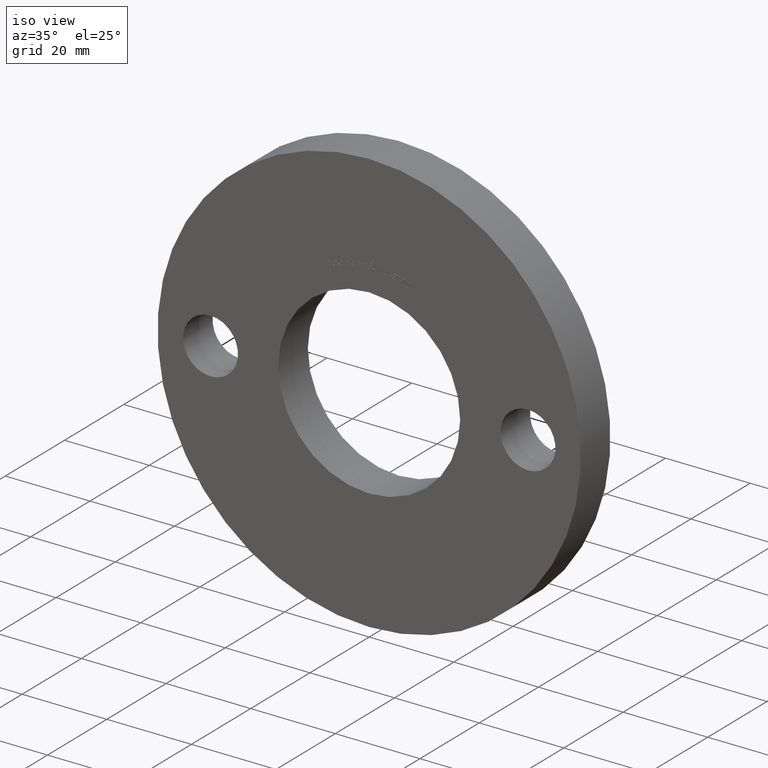
[diagram: clean part render]
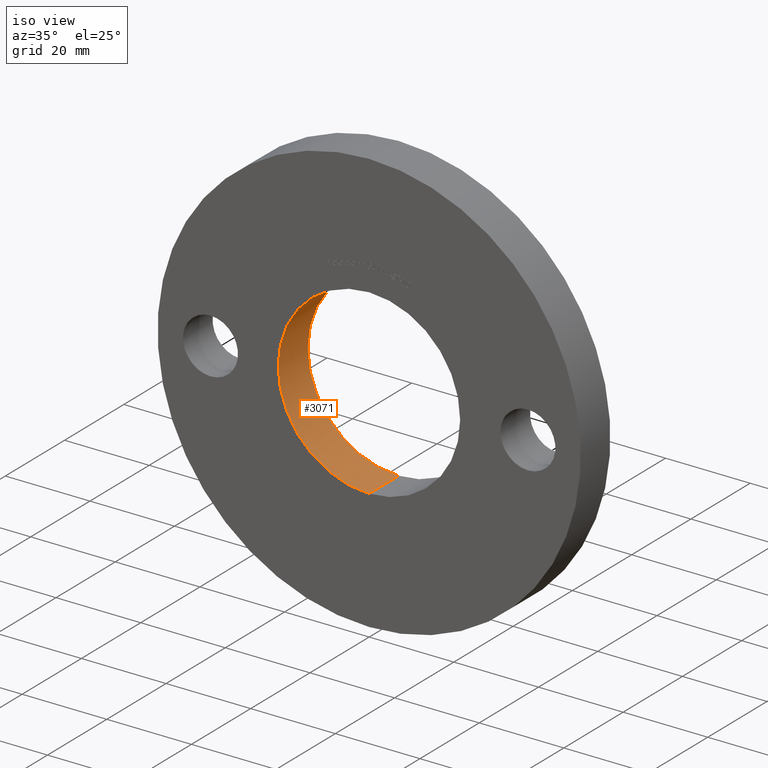
[diagram: same view with one face highlighted and labeled with its STEP entity id]
A machine part, iso view. The second image highlights one B-rep face of the part: STEP entity #3071.
In plain terms, the highlighted cylindrical surface (partial cylindrical patch) has radius 21.5 mm, axis along (-0, 1, -0).
Its self-contained STEP definition (entity closure, byte-faithful):
#118 = CARTESIAN_POINT ( 'NONE',  ( 0.0000000000000000000, 10.00000000000000000, 21.50000000000000000 ) ) ;
#128 = VERTEX_POINT ( 'NONE', #118 ) ;
#342 = CARTESIAN_POINT ( 'NONE',  ( 0.0000000000000000000, 0.0000000000000000000, 0.0000000000000000000 ) ) ;
#442 = CARTESIAN_POINT ( 'NONE',  ( 0.0000000000000000000, 0.0000000000000000000, 21.50000000000000000 ) ) ;
#572 = CIRCLE ( 'NONE', #9294, 21.50000000000000000 ) ;
#603 = DIRECTION ( 'NONE',  ( 0.0000000000000000000, 0.0000000000000000000, 1.000000000000000000 ) ) ;
#1166 = EDGE_CURVE ( 'NONE', #9654, #128, #1824, .T. ) ;
#1824 = CIRCLE ( 'NONE', #6657, 21.50000000000000000 ) ;
#1882 = EDGE_CURVE ( 'NONE', #11280, #10514, #572, .T. ) ;
#2104 = DIRECTION ( 'NONE',  ( 0.0000000000000000000, 1.000000000000000000, 0.0000000000000000000 ) ) ;
#2323 = DIRECTION ( 'NONE',  ( 0.0000000000000000000, 1.000000000000000000, 0.0000000000000000000 ) ) ;
#2742 = CARTESIAN_POINT ( 'NONE',  ( 2.632990618166809200E-015, 10.00000000000000000, -21.50000000000000000 ) ) ;
#3071 = ADVANCED_FACE ( 'NONE', ( #9314 ), #4134, .F. ) ;
#3130 = ORIENTED_EDGE ( 'NONE', *, *, #1166, .T. ) ;
#3159 = LINE ( 'NONE', #7833, #5939 ) ;
#3377 = DIRECTION ( 'NONE',  ( -0.0000000000000000000, 1.000000000000000000, -0.0000000000000000000 ) ) ;
#3745 = ORIENTED_EDGE ( 'NONE', *, *, #11361, .T. ) ;
#3811 = CARTESIAN_POINT ( 'NONE',  ( 2.632990618166809200E-015, 0.0000000000000000000, -21.50000000000000000 ) ) ;
#3980 = DIRECTION ( 'NONE',  ( -0.0000000000000000000, 1.000000000000000000, -0.0000000000000000000 ) ) ;
#4134 = CYLINDRICAL_SURFACE ( 'NONE', #9606, 21.50000000000000000 ) ;
#4439 = ORIENTED_EDGE ( 'NONE', *, *, #1882, .F. ) ;
#4475 = ORIENTED_EDGE ( 'NONE', *, *, #5312, .F. ) ;
#4630 = CARTESIAN_POINT ( 'NONE',  ( 0.0000000000000000000, 0.0000000000000000000, 0.0000000000000000000 ) ) ;
#5211 = DIRECTION ( 'NONE',  ( -0.0000000000000000000, 1.000000000000000000, -0.0000000000000000000 ) ) ;
#5312 = EDGE_CURVE ( 'NONE', #10514, #128, #10801, .T. ) ;
#5869 = CARTESIAN_POINT ( 'NONE',  ( 0.0000000000000000000, 10.00000000000000000, 0.0000000000000000000 ) ) ;
#5939 = VECTOR ( 'NONE', #3377, 1000.000000000000000 ) ;
#6092 = EDGE_LOOP ( 'NONE', ( #4439, #3745, #3130, #4475 ) ) ;
#6427 = DIRECTION ( 'NONE',  ( 0.0000000000000000000, 0.0000000000000000000, 1.000000000000000000 ) ) ;
#6657 = AXIS2_PLACEMENT_3D ( 'NONE', #5869, #2323, #603 ) ;
#7046 = CARTESIAN_POINT ( 'NONE',  ( 0.0000000000000000000, 0.0000000000000000000, 21.50000000000000000 ) ) ;
#7640 = DIRECTION ( 'NONE',  ( 0.0000000000000000000, 0.0000000000000000000, 1.000000000000000000 ) ) ;
#7833 = CARTESIAN_POINT ( 'NONE',  ( 2.632990618166809200E-015, 0.0000000000000000000, -21.50000000000000000 ) ) ;
#9294 = AXIS2_PLACEMENT_3D ( 'NONE', #342, #2104, #6427 ) ;
#9314 = FACE_OUTER_BOUND ( 'NONE', #6092, .T. ) ;
#9606 = AXIS2_PLACEMENT_3D ( 'NONE', #4630, #3980, #7640 ) ;
#9654 = VERTEX_POINT ( 'NONE', #2742 ) ;
#10514 = VERTEX_POINT ( 'NONE', #442 ) ;
#10801 = LINE ( 'NONE', #7046, #11491 ) ;
#11280 = VERTEX_POINT ( 'NONE', #3811 ) ;
#11361 = EDGE_CURVE ( 'NONE', #11280, #9654, #3159, .T. ) ;
#11491 = VECTOR ( 'NONE', #5211, 1000.000000000000000 ) ;